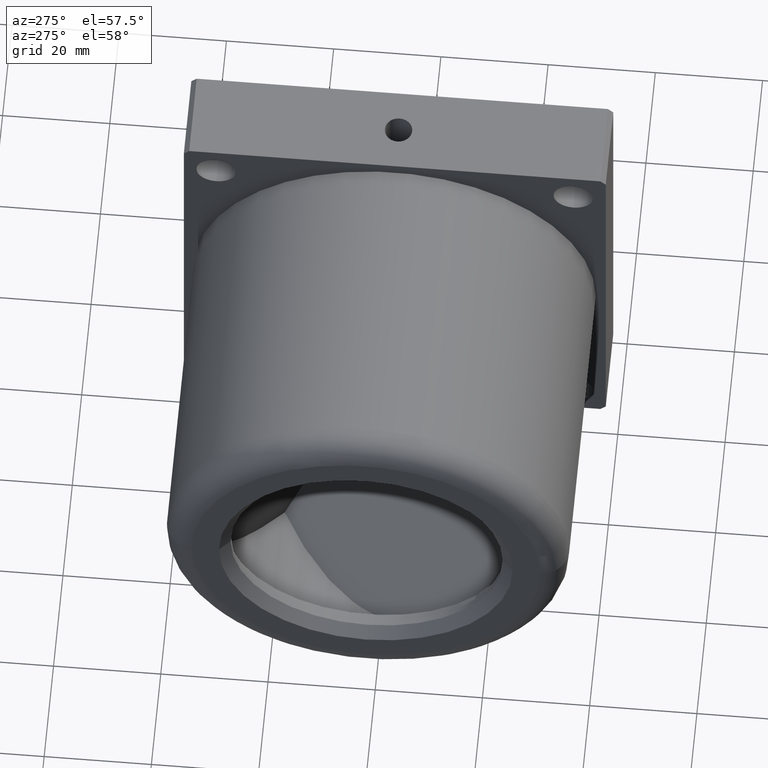
[diagram: clean part render]
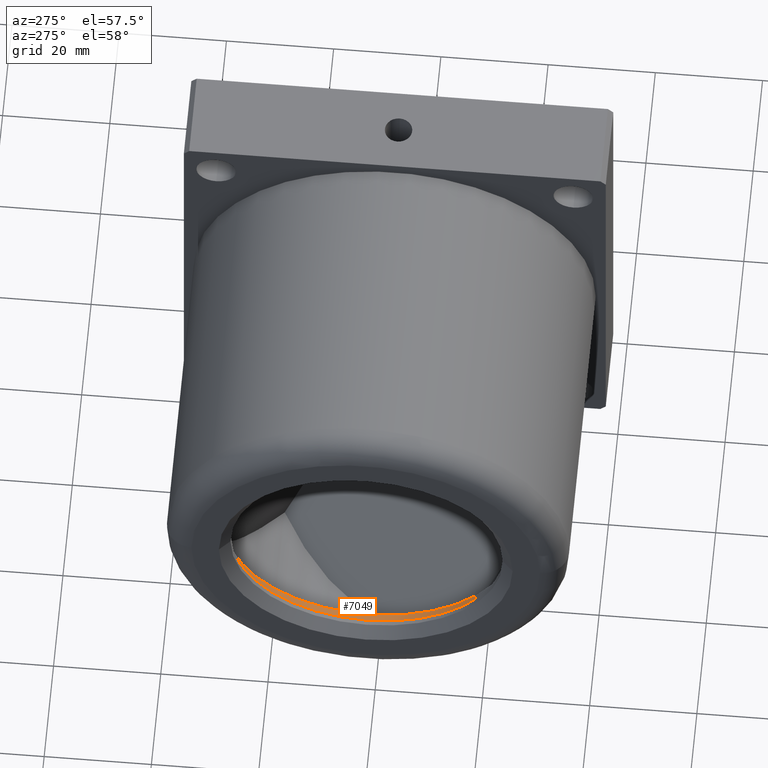
[diagram: same view with one face highlighted and labeled with its STEP entity id]
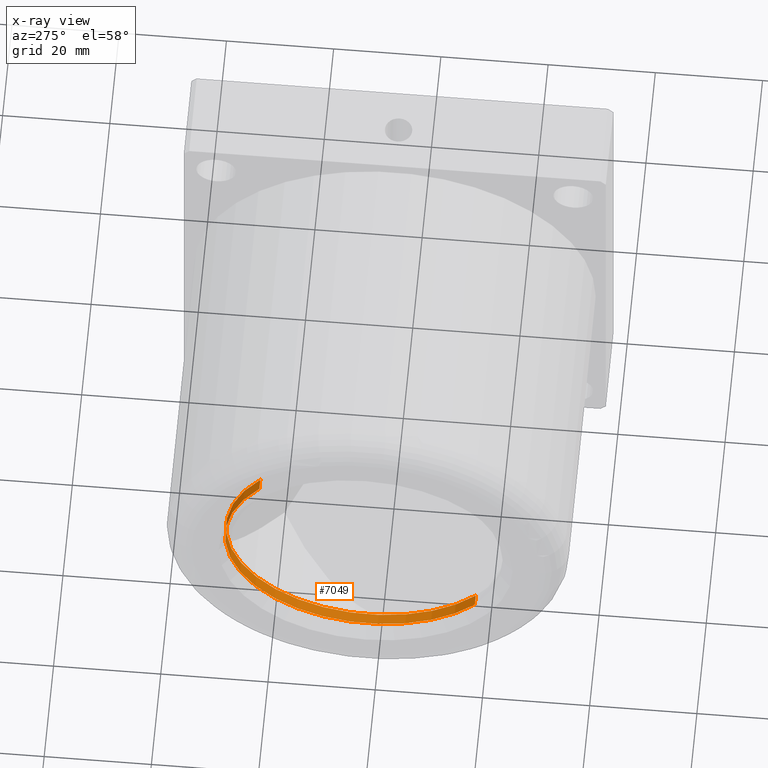
[diagram: x-ray of the same camera — body ghosted, the highlighted face saturated]
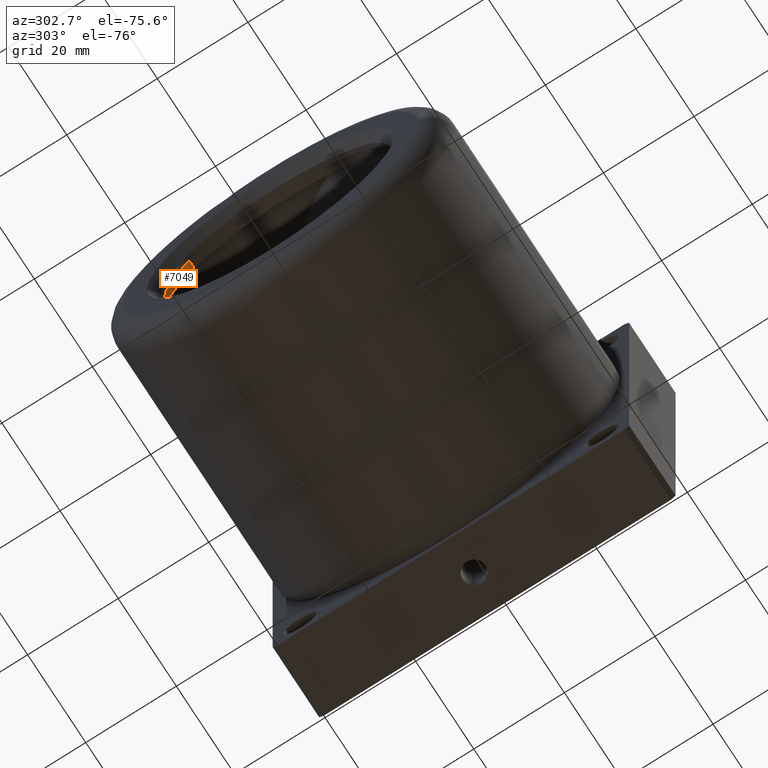
[diagram: same view with one face highlighted and labeled with its STEP entity id]
A machine part, auxiliary view. The second image highlights one B-rep face of the part: STEP entity #7049.
The next image is the same camera in x-ray: the body ghosted, the highlighted face saturated — about 0% of this face is hidden behind the body in this view.
A second angle (auxiliary view) of the same face is appended — the face is thin or edge-on in the first view.
In plain terms, the highlighted cylindrical surface (partial cylindrical patch) has radius 26.5 mm, axis along (-1, -0, -0).
Its self-contained STEP definition (entity closure, byte-faithful):
#544 = EDGE_CURVE ( 'NONE', #7944, #8486, #4300, .T. ) ;
#804 = EDGE_CURVE ( 'NONE', #1191, #7944, #6510, .T. ) ;
#1053 = DIRECTION ( 'NONE',  ( 0.0000000000000000000, -0.7582209396956248700, -0.6519977044492438800 ) ) ;
#1191 = VERTEX_POINT ( 'NONE', #3076 ) ;
#1289 = EDGE_LOOP ( 'NONE', ( #6019, #4455, #3491, #6890 ) ) ;
#1768 = AXIS2_PLACEMENT_3D ( 'NONE', #2725, #8501, #3578 ) ;
#2360 = AXIS2_PLACEMENT_3D ( 'NONE', #6606, #8466, #1053 ) ;
#2725 = CARTESIAN_POINT ( 'NONE',  ( -75.00000000000000000, -118.0500000000000000, 1.806821853832440100E-014 ) ) ;
#3076 = CARTESIAN_POINT ( 'NONE',  ( -73.00000000000000000, -138.1428549019340700, -17.27793916790494700 ) ) ;
#3489 = CIRCLE ( 'NONE', #1768, 26.50000000000000400 ) ;
#3491 = ORIENTED_EDGE ( 'NONE', *, *, #544, .T. ) ;
#3535 = CARTESIAN_POINT ( 'NONE',  ( -73.00000000000000000, -97.95714509806593600, 17.27793916790497900 ) ) ;
#3578 = DIRECTION ( 'NONE',  ( 0.0000000000000000000, -0.7582209396956248700, -0.6519977044492438800 ) ) ;
#3802 = CARTESIAN_POINT ( 'NONE',  ( -73.00000000000000000, -97.95714509806593600, 17.27793916790498200 ) ) ;
#4052 = VECTOR ( 'NONE', #6292, 1000.000000000000000 ) ;
#4300 = LINE ( 'NONE', #3802, #4052 ) ;
#4455 = ORIENTED_EDGE ( 'NONE', *, *, #804, .T. ) ;
#5038 = CARTESIAN_POINT ( 'NONE',  ( -73.00000000000000000, -138.1428549019340700, -17.27793916790495000 ) ) ;
#5828 = FACE_OUTER_BOUND ( 'NONE', #1289, .T. ) ;
#6016 = CARTESIAN_POINT ( 'NONE',  ( -75.00000000000000000, -97.95714509806593600, 17.27793916790497900 ) ) ;
#6019 = ORIENTED_EDGE ( 'NONE', *, *, #8819, .F. ) ;
#6050 = VECTOR ( 'NONE', #9183, 1000.000000000000000 ) ;
#6292 = DIRECTION ( 'NONE',  ( -1.000000000000000000, -7.556308344706275800E-017, -2.846141531372035300E-016 ) ) ;
#6510 = CIRCLE ( 'NONE', #2360, 26.50000000000000400 ) ;
#6606 = CARTESIAN_POINT ( 'NONE',  ( -73.00000000000000000, -118.0500000000000000, 1.863744684459880600E-014 ) ) ;
#6611 = AXIS2_PLACEMENT_3D ( 'NONE', #9619, #7136, #7170 ) ;
#6890 = ORIENTED_EDGE ( 'NONE', *, *, #9700, .F. ) ;
#7049 = ADVANCED_FACE ( 'NONE', ( #5828 ), #8915, .F. ) ;
#7136 = DIRECTION ( 'NONE',  ( -1.000000000000000000, -7.556308344706275800E-017, -2.846141531372035300E-016 ) ) ;
#7170 = DIRECTION ( 'NONE',  ( 0.0000000000000000000, 0.7582209396956248700, 0.6519977044492438800 ) ) ;
#7740 = CARTESIAN_POINT ( 'NONE',  ( -75.00000000000000000, -138.1428549019340700, -17.27793916790494700 ) ) ;
#7944 = VERTEX_POINT ( 'NONE', #3535 ) ;
#8466 = DIRECTION ( 'NONE',  ( 1.000000000000000000, 7.556308344706275800E-017, 2.846141531372035300E-016 ) ) ;
#8486 = VERTEX_POINT ( 'NONE', #6016 ) ;
#8501 = DIRECTION ( 'NONE',  ( 1.000000000000000000, 7.556308344706275800E-017, 2.846141531372035300E-016 ) ) ;
#8819 = EDGE_CURVE ( 'NONE', #1191, #10713, #10434, .T. ) ;
#8915 = CYLINDRICAL_SURFACE ( 'NONE', #6611, 26.50000000000000400 ) ;
#9183 = DIRECTION ( 'NONE',  ( -1.000000000000000000, -7.556308344706275800E-017, -2.846141531372035300E-016 ) ) ;
#9619 = CARTESIAN_POINT ( 'NONE',  ( -73.00000000000000000, -118.0500000000000000, 1.863744684459880600E-014 ) ) ;
#9700 = EDGE_CURVE ( 'NONE', #10713, #8486, #3489, .T. ) ;
#10434 = LINE ( 'NONE', #5038, #6050 ) ;
#10713 = VERTEX_POINT ( 'NONE', #7740 ) ;